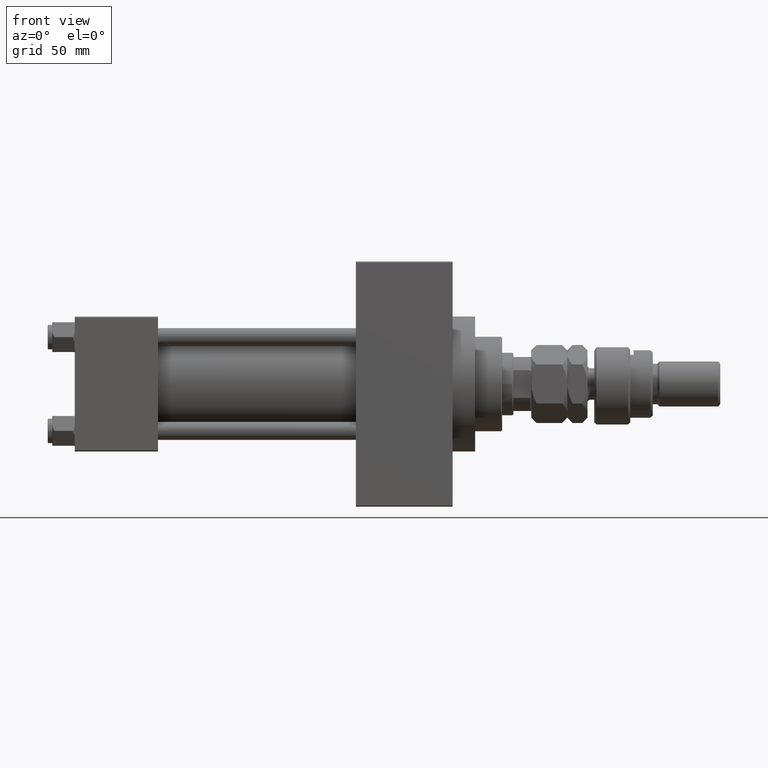
[diagram: clean part render]
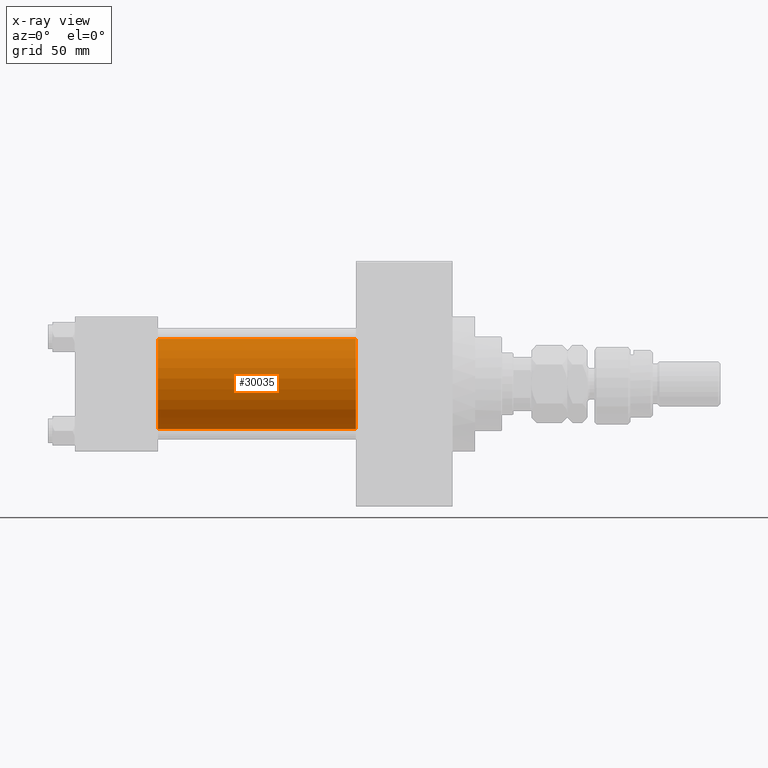
[diagram: x-ray — body ghosted, one internal face saturated and labeled with its STEP entity id]
A machine part, front view, then the same camera in x-ray: the body is ghosted and one INTERNAL B-rep face — a face not visible from any outside direction — is saturated and labeled: STEP entity #30035.
In plain terms, the highlighted cylindrical surface (partial cylindrical patch) has radius 20 mm, axis along (-1, -0, -0).
Its self-contained STEP definition (entity closure, byte-faithful):
#747 = CARTESIAN_POINT ( 'NONE',  ( 125.0000000000000000, -1.527916156705042519E-16, -20.00000000000000000 ) ) ;
#1116 = CARTESIAN_POINT ( 'NONE',  ( 37.00000000000000000, -1.527916156705042519E-16, -20.00000000000000000 ) ) ;
#1322 = CARTESIAN_POINT ( 'NONE',  ( 125.0000000000000000, -2.602085213965210642E-15, 0.000000000000000000 ) ) ;
#3388 = CARTESIAN_POINT ( 'NONE',  ( 125.0000000000000000, -2.602085213965210642E-15, 20.00000000000000000 ) ) ;
#7028 = CIRCLE ( 'NONE', #31566, 20.00000000000000000 ) ;
#7658 = CIRCLE ( 'NONE', #25415, 20.00000000000000000 ) ;
#8936 = DIRECTION ( 'NONE',  ( -1.000000000000000000, -0.000000000000000000, -0.000000000000000000 ) ) ;
#9329 = ORIENTED_EDGE ( 'NONE', *, *, #27267, .T. ) ;
#9546 = DIRECTION ( 'NONE',  ( 1.000000000000000000, 0.000000000000000000, 0.000000000000000000 ) ) ;
#13539 = DIRECTION ( 'NONE',  ( 0.000000000000000000, 0.000000000000000000, -1.000000000000000000 ) ) ;
#14456 = DIRECTION ( 'NONE',  ( -1.000000000000000000, -0.000000000000000000, -0.000000000000000000 ) ) ;
#14574 = EDGE_CURVE ( 'NONE', #19835, #31764, #39710, .T. ) ;
#15234 = FACE_OUTER_BOUND ( 'NONE', #26481, .T. ) ;
#15868 = VECTOR ( 'NONE', #31247, 1000.000000000000000 ) ;
#15974 = AXIS2_PLACEMENT_3D ( 'NONE', #34307, #14456, #31366 ) ;
#18411 = CYLINDRICAL_SURFACE ( 'NONE', #15974, 20.00000000000000000 ) ;
#18583 = CARTESIAN_POINT ( 'NONE',  ( 125.0000000000000000, -2.602085213965210642E-15, 20.00000000000000000 ) ) ;
#19172 = VECTOR ( 'NONE', #8936, 1000.000000000000000 ) ;
#19509 = ORIENTED_EDGE ( 'NONE', *, *, #46193, .F. ) ;
#19597 = LINE ( 'NONE', #23039, #15868 ) ;
#19835 = VERTEX_POINT ( 'NONE', #18583 ) ;
#21389 = ORIENTED_EDGE ( 'NONE', *, *, #23089, .T. ) ;
#23039 = CARTESIAN_POINT ( 'NONE',  ( 125.0000000000000000, -1.527916156705042519E-16, -20.00000000000000000 ) ) ;
#23089 = EDGE_CURVE ( 'NONE', #19835, #38677, #7658, .T. ) ;
#23877 = CARTESIAN_POINT ( 'NONE',  ( 37.00000000000000000, -2.602085213965210642E-15, 0.000000000000000000 ) ) ;
#25415 = AXIS2_PLACEMENT_3D ( 'NONE', #1322, #9546, #13539 ) ;
#26129 = ORIENTED_EDGE ( 'NONE', *, *, #14574, .F. ) ;
#26481 = EDGE_LOOP ( 'NONE', ( #21389, #9329, #19509, #26129 ) ) ;
#27267 = EDGE_CURVE ( 'NONE', #38677, #43975, #19597, .T. ) ;
#28647 = CARTESIAN_POINT ( 'NONE',  ( 37.00000000000000000, -2.602085213965210642E-15, 20.00000000000000000 ) ) ;
#30035 = ADVANCED_FACE ( 'NONE', ( #15234 ), #18411, .F. ) ;
#31247 = DIRECTION ( 'NONE',  ( -1.000000000000000000, -0.000000000000000000, -0.000000000000000000 ) ) ;
#31366 = DIRECTION ( 'NONE',  ( 0.000000000000000000, 0.000000000000000000, 1.000000000000000000 ) ) ;
#31566 = AXIS2_PLACEMENT_3D ( 'NONE', #23877, #45094, #44568 ) ;
#31764 = VERTEX_POINT ( 'NONE', #28647 ) ;
#34307 = CARTESIAN_POINT ( 'NONE',  ( 125.0000000000000000, -2.602085213965210642E-15, 0.000000000000000000 ) ) ;
#38677 = VERTEX_POINT ( 'NONE', #747 ) ;
#39710 = LINE ( 'NONE', #3388, #19172 ) ;
#43975 = VERTEX_POINT ( 'NONE', #1116 ) ;
#44568 = DIRECTION ( 'NONE',  ( 0.000000000000000000, 0.000000000000000000, -1.000000000000000000 ) ) ;
#45094 = DIRECTION ( 'NONE',  ( 1.000000000000000000, 0.000000000000000000, 0.000000000000000000 ) ) ;
#46193 = EDGE_CURVE ( 'NONE', #31764, #43975, #7028, .T. ) ;